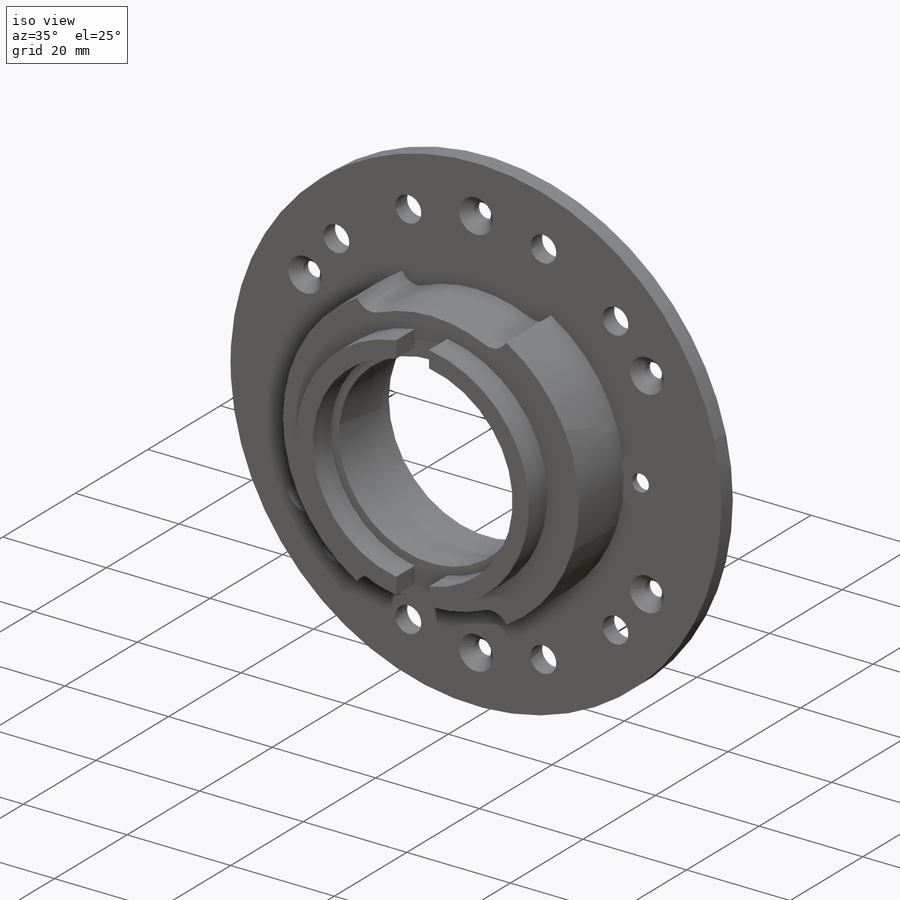
[diagram: iso view]
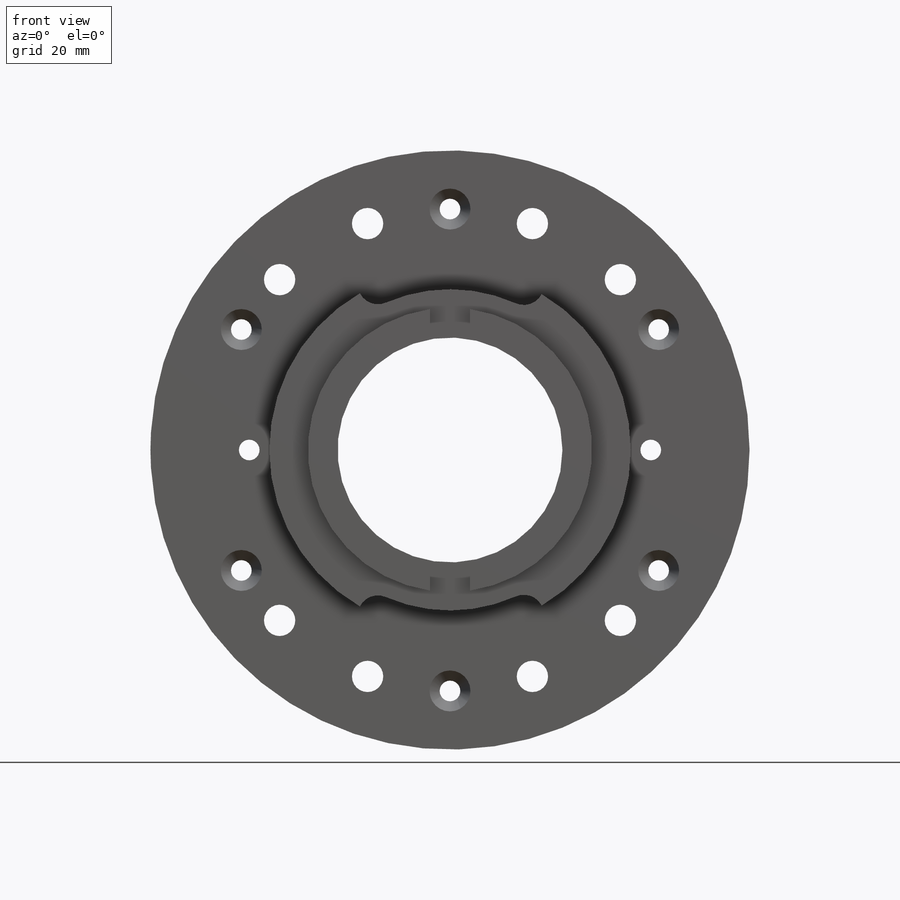
[diagram: front view]
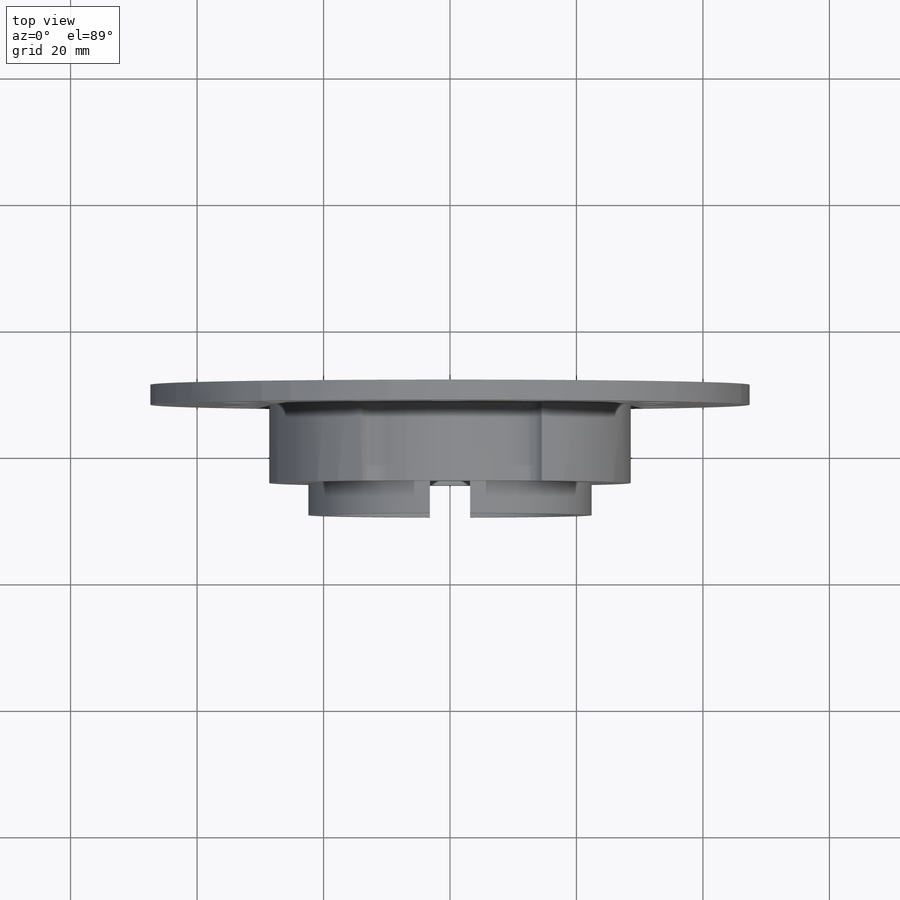
[diagram: top view]
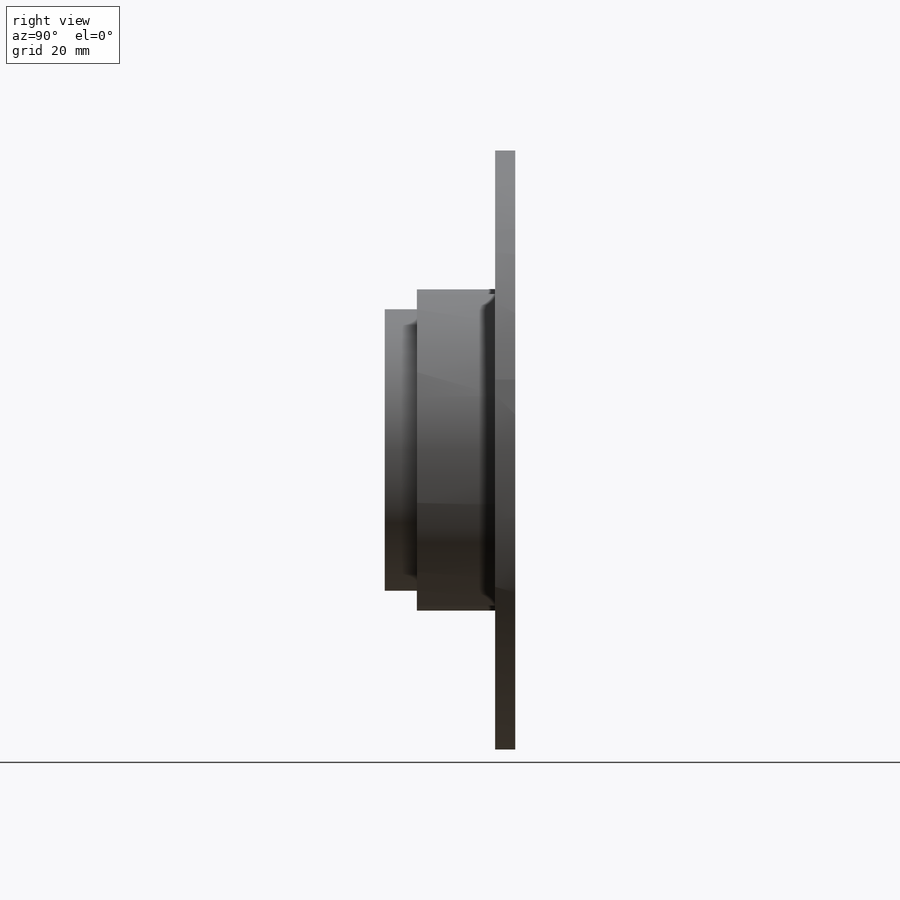
[diagram: right view]
SOLIDWORKS PART (.sldprt)
format: sldprt  version: not decoded by parser v0  size: 382,976 bytes
history: native  units: mm
features: sketch x14, cut_extrude x6, extrude x4, mirror x4, hole x2, pattern_circular x2, material x1 (+13 scaffold rows collapsed)
feature tree (46):
  scaffold x13  (default folders/planes/origin — collapsed)
  material  "Material <not specified>"
  sketch  "Sketch1"  dims[c1.D1=57.15mm c1.D2=~61.800072mm c2.D2=4.9mm]
  extrude  "Boss-Extrude1"  Depth=4.7625mm
  sketch  "Sketch2"  dims[D1=35.56mm]
  cut_extrude  "Cut-Extrude1"  [1 undecoded]
  sketch  "Sketch3"  dims[D1=52.07mm]
  cut_extrude  "Cut-Extrude2"  Depth=1.905mm
  sketch  "Sketch9"  dims[D1=35.56mm]
  extrude  "Boss-Extrude4"  Depth=7.62mm
  sketch  "Sketch4"  dims[D1=38.608mm D2=3.175mm]
  extrude  "Boss-Extrude2"  Depth=5.08mm
  sketch  "Sketch5"  dims[D1=3.175mm D2=6.35mm D3=50.8mm D4=25.4mm]
  cut_extrude  "Cut-Extrude3"  [1 undecoded]
  sketch  "Sketch7"  dims[D1=3.175mm]
  cut_extrude  "Cut-Extrude4"  [1 undecoded]
  mirror  "Mirror1"
  sketch  "Sketch10"  dims[D1=38.1mm]
  cut_extrude  "Cut-Extrude5"  Depth=0.59182mm
  sketch  "Sketch11"  dims[D1=94.742mm D2=38.1mm]
  extrude  "Boss-Extrude5"  Depth=3.175mm
  hole  "CSK for #4 Flat Head Socket Cap Screw1"  Diameter=3.2639mm Depth=5.08mm
  sketch  "Sketch13"  dims[D1=31.75mm]
  sketch  "Sketch12"  dims[hole-wizard template sketch: 39 standard entries collapsed; hole parameters kept: c13.Hole Dia.=3.2639mm c13.Hole Depth=5.08mm c13.Near C'Sink Dia.=6.477mm c13.D4=~33.297463mm c13.Near C'Sink Angle=82.0deg c14.D5=~14.816244mm c14.Drill Angle=118.0deg]
  mirror  "Mirror2"
  hole  "CSK for #4 Flat Head Socket Cap Screw3"  Diameter=3.2639mm Depth=3.175mm
  sketch  "Sketch17"  dims[D1=38.1mm]
  sketch  "Sketch16"  dims[hole-wizard template sketch: 39 standard entries collapsed; hole parameters kept: c13.Hole Dia.=3.2639mm c13.Hole Depth=3.175mm c13.Near C'Sink Dia.=6.477mm c13.D4=~33.297463mm c13.Near C'Sink Angle=82.0deg c14.D5=~14.816244mm c14.Drill Angle=118.0deg]
  pattern_circular  "CirPattern1"  Count=6 Angle=360deg
  sketch  "Sketch19"  dims[c1.D1=4.953mm c1.D3=4.953mm c1.D2=38.1mm c2.D3=~37.23948mm c3.D3=70.0deg]
  cut_extrude  "Cut-Extrude7"  [1 undecoded]
  pattern_circular  "CirPattern2"  Count=2 Angle=25deg
  mirror  "Mirror3"
  mirror  "Mirror4"
decode coverage: 24 of 32 modeling features carry decoded parameters
note: ~ marks probable driven/reference dimensions
note: 4 parameter values undecoded
summary: no parameter record found for 4 features
note: suppression state not decoded; provenance and decode notes live in map.json
